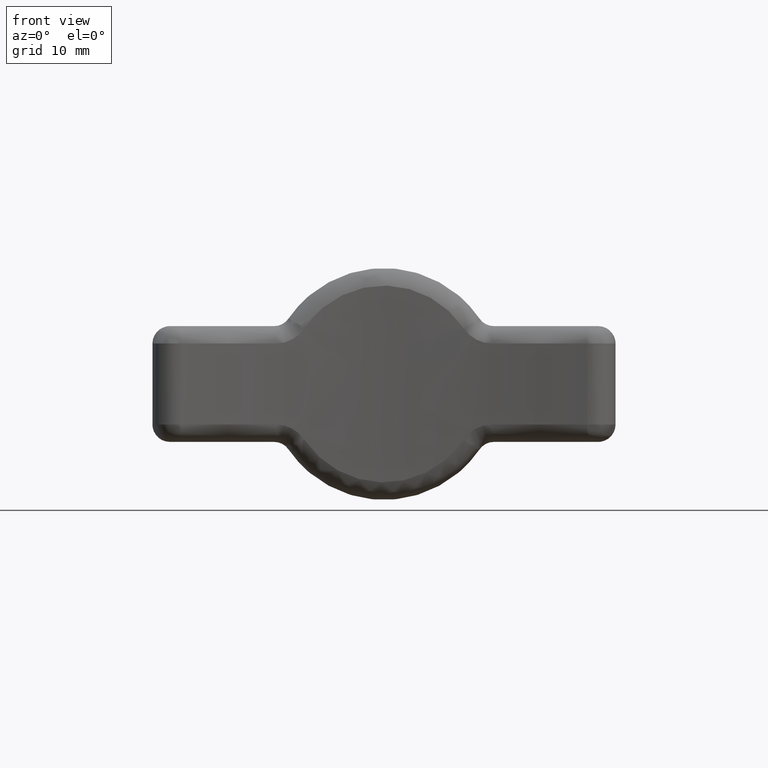
[diagram: clean part render]
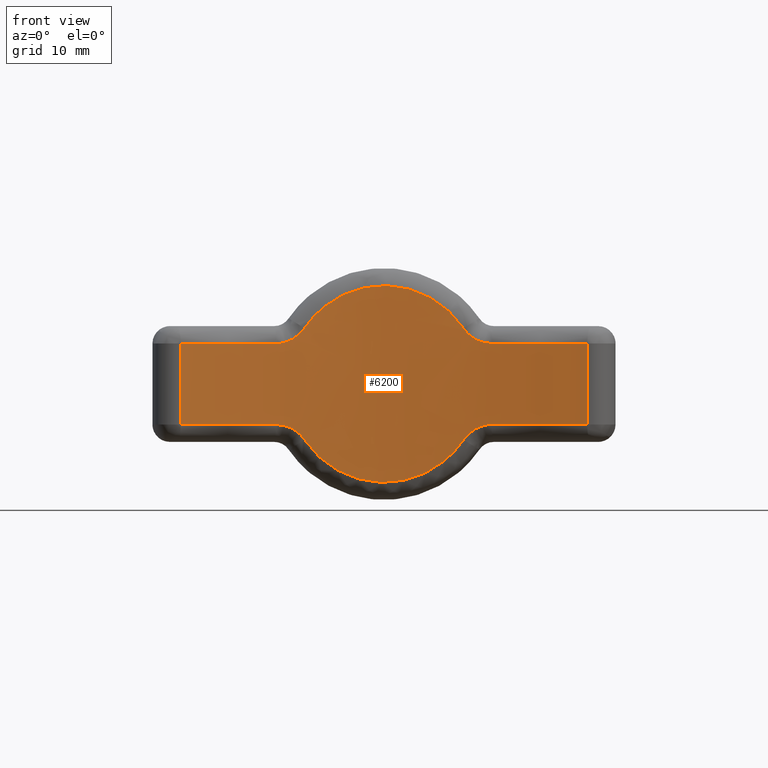
[diagram: same view with one face highlighted and labeled with its STEP entity id]
A machine part, front view. The second image highlights one B-rep face of the part: STEP entity #6200.
In plain terms, the highlighted face is a freeform B-spline surface patch.
Its self-contained STEP definition (entity closure, byte-faithful):
#4626=CARTESIAN_POINT('',(-6.882951530263200,-29.196645229496550,-4.804348001615129));
#4627=VERTEX_POINT('',#4626);
#4643=CARTESIAN_POINT('',(-9.312228540944341,-29.443834816931499,-3.500000237479300));
#4644=VERTEX_POINT('',#4643);
#4645=CARTESIAN_POINT('',(-9.312228540944341,-29.443834816931499,-3.500000237479300));
#4646=CARTESIAN_POINT('',(-9.071518962916295,-29.415623759280962,-3.500000237479301));
#4647=CARTESIAN_POINT('',(-8.835776354449948,-29.389102647513941,-3.529622997993391));
#4648=CARTESIAN_POINT('',(-8.547105047202308,-29.357871837119209,-3.602398044453264));
#4649=CARTESIAN_POINT('',(-8.489675431126289,-29.351722235271229,-3.618765421111290));
#4650=CARTESIAN_POINT('',(-8.375437801589307,-29.339613338252612,-3.655193870482224));
#4651=CARTESIAN_POINT('',(-8.318447065610274,-29.333635309412241,-3.675333693061042));
#4652=CARTESIAN_POINT('',(-8.150526878783099,-29.316199113888882,-3.740604193385678));
#4653=CARTESIAN_POINT('',(-8.042220852334076,-29.305191395184181,-3.790646138706372));
#4654=CARTESIAN_POINT('',(-7.832656029160785,-29.284295692447309,-3.903353612295013));
#4655=CARTESIAN_POINT('',(-7.731397828613546,-29.274407985558771,-3.966020240410201));
#4656=CARTESIAN_POINT('',(-7.584857042386448,-29.260360776220601,-4.069585900042158));
#4657=CARTESIAN_POINT('',(-7.536903577232531,-29.255809371701329,-4.105706313914243));
#4658=CARTESIAN_POINT('',(-7.442823833237929,-29.246962458013289,-4.181214124395618));
#4659=CARTESIAN_POINT('',(-7.396895281725071,-29.242685722533331,-4.220455759793914));
#4660=CARTESIAN_POINT('',(-7.174580743646014,-29.222166975298350,-4.422399176061187));
#4661=CARTESIAN_POINT('',(-7.018020687846637,-29.208309411101261,-4.603516568508907));
#4662=CARTESIAN_POINT('',(-6.882951530263200,-29.196645229496550,-4.804348001615129));
#4663=B_SPLINE_CURVE_WITH_KNOTS('',3,(#4645,#4646,#4647,#4648,#4649,#4650,#4651,#4652,#4653,#4654,#4655,#4656,#4657,#4658,#4659,#4660,#4661,#4662),.UNSPECIFIED.,.F.,.U.,(4,2,2,2,2,2,2,2,4),(0.0,0.250000000000005,0.312500000000005,0.375000000000005,0.500000000000004,0.625000000000002,0.687500000000002,0.750000000000002,1.0),.UNSPECIFIED.);
#4664=EDGE_CURVE('',#4644,#4627,#4663,.T.);
#4734=CARTESIAN_POINT('',(-17.560976556879549,-30.851221002978502,-3.500000237479315));
#4735=VERTEX_POINT('',#4734);
#4736=CARTESIAN_POINT('',(-17.560976556879599,-30.851221002978420,-3.500000237479315));
#4737=CARTESIAN_POINT('',(-13.473455910270824,-29.931528851272681,-3.500000237479315));
#4738=CARTESIAN_POINT('',(-9.312228540944394,-29.443834816931400,-3.500000237479315));
#4746=(BOUNDED_CURVE()B_SPLINE_CURVE(2,(#4736,#4737,#4738),.UNSPECIFIED.,.F.,.U.)CURVE()GEOMETRIC_REPRESENTATION_ITEM()QUASI_UNIFORM_CURVE()RATIONAL_B_SPLINE_CURVE((1.0,0.998631435135119,1.0))REPRESENTATION_ITEM(''));
#4747=EDGE_CURVE('',#4735,#4644,#4746,.T.);
#4846=CARTESIAN_POINT('',(-17.560976556879549,-30.851221002978502,3.500000237479540));
#4847=VERTEX_POINT('',#4846);
#4848=CARTESIAN_POINT('',(-17.560976556879549,-30.851221002978502,3.500000237479540));
#4849=CARTESIAN_POINT('',(-17.560976556879549,-30.851221002978502,-3.500000237479315));
#4850=QUASI_UNIFORM_CURVE('',1,(#4848,#4849),.UNSPECIFIED.,.F.,.U.);
#4851=EDGE_CURVE('',#4847,#4735,#4850,.T.);
#4975=CARTESIAN_POINT('',(-9.312228540944199,-29.443834816931449,3.500000237479540));
#4976=VERTEX_POINT('',#4975);
#4992=CARTESIAN_POINT('',(-9.312228540944153,-29.443834816931371,3.500000237479540));
#4993=CARTESIAN_POINT('',(-13.473455910270628,-29.931528851272638,3.500000237479540));
#4994=CARTESIAN_POINT('',(-17.560976556879559,-30.851221002978420,3.500000237479540));
#5002=(BOUNDED_CURVE()B_SPLINE_CURVE(2,(#4992,#4993,#4994),.UNSPECIFIED.,.F.,.U.)CURVE()GEOMETRIC_REPRESENTATION_ITEM()QUASI_UNIFORM_CURVE()RATIONAL_B_SPLINE_CURVE((1.0,0.998631435135119,1.0))REPRESENTATION_ITEM(''));
#5003=EDGE_CURVE('',#4976,#4847,#5002,.T.);
#5086=CARTESIAN_POINT('',(-6.882951530263100,-29.196645229496550,4.804348001615280));
#5087=VERTEX_POINT('',#5086);
#5105=CARTESIAN_POINT('',(-6.882951530263100,-29.196645229496550,4.804348001615280));
#5106=CARTESIAN_POINT('',(-7.018011532994957,-29.208308620514760,4.603530180661500));
#5107=CARTESIAN_POINT('',(-7.174189859148317,-29.222134234853339,4.422973721272654));
#5108=CARTESIAN_POINT('',(-7.395136969048744,-29.242522620555111,4.221999232380635));
#5109=CARTESIAN_POINT('',(-7.440630258190539,-29.246757647590421,4.183057348700004));
#5110=CARTESIAN_POINT('',(-7.534279729378718,-29.255561242850479,4.107733667484102));
#5111=CARTESIAN_POINT('',(-7.582602017804489,-29.260145887150308,4.071242392751269));
#5112=CARTESIAN_POINT('',(-7.729884697382384,-29.274260466078371,3.966967827058445));
#5113=CARTESIAN_POINT('',(-7.932936928947520,-29.294086144805689,3.841210631793005));
#5114=CARTESIAN_POINT('',(-8.148974391813097,-29.316041024286928,3.741311702752466));
#5115=CARTESIAN_POINT('',(-8.315951245010847,-29.333374640818128,3.676253302473996));
#5116=CARTESIAN_POINT('',(-8.372437199595181,-29.339297361507239,3.656215853272623));
#5117=CARTESIAN_POINT('',(-8.487104845318299,-29.351447778968950,3.619523085359560));
#5118=CARTESIAN_POINT('',(-8.544989553730177,-29.357644328655439,3.602971898823149));
#5119=CARTESIAN_POINT('',(-8.835149539076932,-29.389029487283761,3.529622020823323));
#5120=CARTESIAN_POINT('',(-9.071528057198714,-29.415624825126869,3.500000237479496));
#5121=CARTESIAN_POINT('',(-9.312228540944190,-29.443834816931449,3.500000237479495));
#5122=B_SPLINE_CURVE_WITH_KNOTS('',3,(#5105,#5106,#5107,#5108,#5109,#5110,#5111,#5112,#5113,#5114,#5115,#5116,#5117,#5118,#5119,#5120,#5121),.UNSPECIFIED.,.F.,.U.,(4,2,2,2,1,2,2,2,4),(0.0,0.249999999999999,0.312499999999999,0.374999999999999,0.500000000000001,0.625000000000003,0.687500000000003,0.750000000000003,1.0),.UNSPECIFIED.);
#5123=EDGE_CURVE('',#5087,#4976,#5122,.T.);
#5297=CARTESIAN_POINT('',(6.882951530262910,-29.196645229496500,4.804348001615580));
#5298=VERTEX_POINT('',#5297);
#5299=CARTESIAN_POINT('',(6.882951530262910,-29.196645229496500,4.804348001615580));
#5300=CARTESIAN_POINT('',(6.692180091669834,-29.180170760087250,5.088001961511731));
#5301=CARTESIAN_POINT('',(6.485864922878939,-29.163040290591720,5.357991514905151));
#5302=CARTESIAN_POINT('',(6.042687825544173,-29.128231115384221,5.871167387781828));
#5303=CARTESIAN_POINT('',(5.805826856503565,-29.110550525692648,6.114354420237786));
#5304=CARTESIAN_POINT('',(5.490139297057403,-29.088583783592480,6.401163205751567));
#5305=CARTESIAN_POINT('',(5.425951704936668,-29.084192990067820,6.457715164217164));
#5306=CARTESIAN_POINT('',(5.296347234313942,-29.075488060154321,6.568435410319348));
#5307=CARTESIAN_POINT('',(5.099859553891168,-29.062528736148550,6.731163761486338));
#5308=CARTESIAN_POINT('',(4.897201087164555,-29.049913816723510,6.883956886210044));
#5309=CARTESIAN_POINT('',(4.483760355254020,-29.025273616038881,7.176475245610575));
#5310=CARTESIAN_POINT('',(4.197330948371993,-29.009632608000320,7.354111202534035));
#5311=CARTESIAN_POINT('',(3.751356378670708,-28.987865386386481,7.594340035817850));
#5312=CARTESIAN_POINT('',(3.599969130342005,-28.980892041008179,7.670033651340565));
#5313=CARTESIAN_POINT('',(3.368709639679166,-28.970921875439760,7.776868492425852));
#5314=CARTESIAN_POINT('',(3.290926207179317,-28.967680150660559,7.811361704737352));
#5315=CARTESIAN_POINT('',(3.133944984268276,-28.961371411760389,7.878079226726049));
#5316=CARTESIAN_POINT('',(3.054620583475751,-28.958299941218801,7.910349703773831));
#5317=CARTESIAN_POINT('',(2.656956720414892,-28.943501143676158,8.064968045770637));
#5318=CARTESIAN_POINT('',(2.334247509366044,-28.933393431576370,8.167799561713736));
#5319=CARTESIAN_POINT('',(1.679940622701304,-28.916972570186122,8.332999349436914));
#5320=CARTESIAN_POINT('',(1.348342395000225,-28.910658586274010,8.395365002253284));
#5321=CARTESIAN_POINT('',(0.844180713750553,-28.904278952108200,8.458140062756149));
#5322=CARTESIAN_POINT('',(0.674996409423580,-28.902667682884712,8.473922306691357));
#5323=CARTESIAN_POINT('',(0.419483160540171,-28.901055827824091,8.489695496440836));
#5324=CARTESIAN_POINT('',(0.333875941827207,-28.900652538542769,8.493637437240347));
#5325=CARTESIAN_POINT('',(0.163148621198959,-28.900122188059498,8.498820183227686));
#5326=CARTESIAN_POINT('',(0.077959870261034,-28.899994185099239,8.500070208378265));
#5327=CARTESIAN_POINT('',(-0.347121110482648,-28.900031678971722,8.499703967534243));
#5328=CARTESIAN_POINT('',(-0.684434657932422,-28.902229237701150,8.478313235756813));
#5329=CARTESIAN_POINT('',(-1.353700434779167,-28.910755266977450,8.394409430222243));
#5330=CARTESIAN_POINT('',(-1.685652523752958,-28.917084246923761,8.331895319570942));
#5331=CARTESIAN_POINT('',(-2.097180637665922,-28.927452256763260,8.227564762843713));
#5332=CARTESIAN_POINT('',(-2.179315069861512,-28.929648684499391,8.205384677696536));
#5333=CARTESIAN_POINT('',(-2.343237590918861,-28.934283962820849,8.158365540201528));
#5334=CARTESIAN_POINT('',(-2.425172539076857,-28.936727574327140,8.133477620882770));
#5335=CARTESIAN_POINT('',(-2.669108112579998,-28.944374086787882,8.055207780780904));
#5336=CARTESIAN_POINT('',(-2.829274222709096,-28.949891082222859,7.998240226625372));
#5337=CARTESIAN_POINT('',(-3.302599227188776,-28.967576477187539,7.813355119874438));
#5338=CARTESIAN_POINT('',(-3.608610455631397,-28.980878785499229,7.671505461727405));
#5339=CARTESIAN_POINT('',(-4.201952421350153,-29.009877949353079,7.351343041663596));
#5340=CARTESIAN_POINT('',(-4.489283451227253,-29.025576381526140,7.173030996760441));
#5341=CARTESIAN_POINT('',(-4.836499328185675,-29.046303180926571,6.926780736930613));
#5342=CARTESIAN_POINT('',(-4.905443337930893,-29.050509944209239,6.876281973392302));
#5343=CARTESIAN_POINT('',(-5.041628396405044,-29.058992868878480,6.773281028961065));
#5344=CARTESIAN_POINT('',(-5.243019070603186,-29.071799806496319,6.616040312790791));
#5345=CARTESIAN_POINT('',(-5.435892830051249,-29.084797672007799,6.450714465071910));
#5346=CARTESIAN_POINT('',(-5.810538871980882,-29.110902339299230,6.109514252459461));
#5347=CARTESIAN_POINT('',(-6.045540410418052,-29.128450526444819,5.868020282902962));
#5348=CARTESIAN_POINT('',(-6.486365348359632,-29.163084275903032,5.357254818174227));
#5349=CARTESIAN_POINT('',(-6.692191059900417,-29.180171707271938,5.087985653084953));
#5350=CARTESIAN_POINT('',(-6.882951530263101,-29.196645229496550,4.804348001615278));
#5351=B_SPLINE_CURVE_WITH_KNOTS('',3,(#5299,#5300,#5301,#5302,#5303,#5304,#5305,#5306,#5307,#5308,#5309,#5310,#5311,#5312,#5313,#5314,#5315,#5316,#5317,#5318,#5319,#5320,#5321,#5322,#5323,#5324,#5325,#5326,#5327,#5328,#5329,#5330,#5331,#5332,#5333,#5334,#5335,#5336,#5337,#5338,#5339,#5340,#5341,#5342,#5343,#5344,#5345,#5346,#5347,#5348,#5349,#5350),.UNSPECIFIED.,.F.,.U.,(4,2,2,2,1,2,2,2,2,2,2,2,2,2,2,2,2,2,2,2,2,2,2,1,2,2,4),(0.0,0.062500000000000,0.125000000000000,0.140625000000000,0.156250000000000,0.187500000000000,0.250000000000000,0.281250000000000,0.296875000000000,0.312500000000000,0.374999999999999,0.437499999999999,0.468749999999999,0.484374999999999,0.499999999999999,0.562499999999999,0.624999999999999,0.640624999999999,0.656249999999999,0.687500000000000,0.750000000000000,0.812500000000001,0.828125000000001,0.843750000000001,0.875000000000001,0.937500000000000,1.0),.UNSPECIFIED.);
#5352=EDGE_CURVE('',#5298,#5087,#5351,.T.);
#5452=CARTESIAN_POINT('',(9.312228540943931,-29.443834816931400,3.500000237479895));
#5453=VERTEX_POINT('',#5452);
#5454=CARTESIAN_POINT('',(9.312228540943931,-29.443834816931400,3.500000237479895));
#5455=CARTESIAN_POINT('',(9.071518962915905,-29.415623759280869,3.500000237479897));
#5456=CARTESIAN_POINT('',(8.835776354449568,-29.389102647513869,3.529622997993991));
#5457=CARTESIAN_POINT('',(8.547105047201946,-29.357871837119159,3.602398044453854));
#5458=CARTESIAN_POINT('',(8.489675431125933,-29.351722235271179,3.618765421111878));
#5459=CARTESIAN_POINT('',(8.375437801588960,-29.339613338252558,3.655193870482808));
#5460=CARTESIAN_POINT('',(8.318447065609933,-29.333635309412180,3.675333693061623));
#5461=CARTESIAN_POINT('',(8.150526878782767,-29.316199113888828,3.740604193386252));
#5462=CARTESIAN_POINT('',(8.042220852333751,-29.305191395184139,3.790646138706939));
#5463=CARTESIAN_POINT('',(7.832656029160466,-29.284295692447252,3.903353612295565));
#5464=CARTESIAN_POINT('',(7.731397828613233,-29.274407985558710,3.966020240410745));
#5465=CARTESIAN_POINT('',(7.584857042386141,-29.260360776220541,4.069585900042688));
#5466=CARTESIAN_POINT('',(7.536903577232225,-29.255809371701279,4.105706313914771));
#5467=CARTESIAN_POINT('',(7.442823833237632,-29.246962458013261,4.181214124396138));
#5468=CARTESIAN_POINT('',(7.396895281724775,-29.242685722533299,4.220455759794429));
#5469=CARTESIAN_POINT('',(7.174580743645721,-29.222166975298290,4.422399176061677));
#5470=CARTESIAN_POINT('',(7.018020687846347,-29.208309411101201,4.603516568509367));
#5471=CARTESIAN_POINT('',(6.882951530262910,-29.196645229496500,4.804348001615570));
#5472=B_SPLINE_CURVE_WITH_KNOTS('',3,(#5454,#5455,#5456,#5457,#5458,#5459,#5460,#5461,#5462,#5463,#5464,#5465,#5466,#5467,#5468,#5469,#5470,#5471),.UNSPECIFIED.,.F.,.U.,(4,2,2,2,2,2,2,2,4),(0.0,0.250000000000005,0.312500000000006,0.375000000000006,0.500000000000005,0.625000000000004,0.687500000000003,0.750000000000003,1.0),.UNSPECIFIED.);
#5473=EDGE_CURVE('',#5453,#5298,#5472,.T.);
#5547=CARTESIAN_POINT('',(17.560976556879549,-30.851221002978448,3.500000237479870));
#5548=VERTEX_POINT('',#5547);
#5549=CARTESIAN_POINT('',(17.560976556879581,-30.851221002978381,3.500000237479870));
#5550=CARTESIAN_POINT('',(13.473455910270589,-29.931528851272589,3.500000237479870));
#5551=CARTESIAN_POINT('',(9.312228540943957,-29.443834816931329,3.500000237479870));
#5559=(BOUNDED_CURVE()B_SPLINE_CURVE(2,(#5549,#5550,#5551),.UNSPECIFIED.,.F.,.U.)CURVE()GEOMETRIC_REPRESENTATION_ITEM()QUASI_UNIFORM_CURVE()RATIONAL_B_SPLINE_CURVE((1.0,0.998631435135119,1.0))REPRESENTATION_ITEM(''));
#5560=EDGE_CURVE('',#5548,#5453,#5559,.T.);
#5659=CARTESIAN_POINT('',(17.560976556879549,-30.851221002978448,-3.500000237479870));
#5660=VERTEX_POINT('',#5659);
#5661=CARTESIAN_POINT('',(17.560976556879549,-30.851221002978448,-3.500000237479870));
#5662=CARTESIAN_POINT('',(17.560976556879549,-30.851221002978448,3.500000237479870));
#5663=QUASI_UNIFORM_CURVE('',1,(#5661,#5662),.UNSPECIFIED.,.F.,.U.);
#5664=EDGE_CURVE('',#5660,#5548,#5663,.T.);
#5788=CARTESIAN_POINT('',(9.312228540943931,-29.443834816931400,-3.500000237479870));
#5789=VERTEX_POINT('',#5788);
#5807=CARTESIAN_POINT('',(9.312228540943927,-29.443834816931322,-3.500000237479870));
#5808=CARTESIAN_POINT('',(13.473455910270410,-29.931528851272564,-3.500000237479870));
#5809=CARTESIAN_POINT('',(17.560976556879559,-30.851221002978381,-3.500000237479870));
#5817=(BOUNDED_CURVE()B_SPLINE_CURVE(2,(#5807,#5808,#5809),.UNSPECIFIED.,.F.,.U.)CURVE()GEOMETRIC_REPRESENTATION_ITEM()QUASI_UNIFORM_CURVE()RATIONAL_B_SPLINE_CURVE((1.0,0.998631435135119,1.0))REPRESENTATION_ITEM(''));
#5818=EDGE_CURVE('',#5789,#5660,#5817,.T.);
#5901=CARTESIAN_POINT('',(6.882951530262910,-29.196645229496500,-4.804348001615580));
#5902=VERTEX_POINT('',#5901);
#5920=CARTESIAN_POINT('',(6.882951530262910,-29.196645229496500,-4.804348001615580));
#5921=CARTESIAN_POINT('',(7.018011532994769,-29.208308620514710,-4.603530180661813));
#5922=CARTESIAN_POINT('',(7.174189859148125,-29.222134234853300,-4.422973721272980));
#5923=CARTESIAN_POINT('',(7.395136969048549,-29.242522620555079,-4.221999232380978));
#5924=CARTESIAN_POINT('',(7.440630258190346,-29.246757647590400,-4.183057348700349));
#5925=CARTESIAN_POINT('',(7.534279729378519,-29.255561242850440,-4.107733667484454));
#5926=CARTESIAN_POINT('',(7.582602017804288,-29.260145887150280,-4.071242392751622));
#5927=CARTESIAN_POINT('',(7.729884697382183,-29.274260466078349,-3.966967827058809));
#5928=CARTESIAN_POINT('',(7.932937167979225,-29.294085978484350,-3.841211067267693));
#5929=CARTESIAN_POINT('',(8.148974391812891,-29.316041024286871,-3.741311702752847));
#5930=CARTESIAN_POINT('',(8.315951245010634,-29.333374640818072,-3.676253302474380));
#5931=CARTESIAN_POINT('',(8.372437199594957,-29.339297361507189,-3.656215853273009));
#5932=CARTESIAN_POINT('',(8.487104845318072,-29.351447778968900,-3.619523085359951));
#5933=CARTESIAN_POINT('',(8.544989553729948,-29.357644328655379,-3.602971898823540));
#5934=CARTESIAN_POINT('',(8.835149539076690,-29.389029487283700,-3.529622020823720));
#5935=CARTESIAN_POINT('',(9.071528057198460,-29.415624825126820,-3.500000237479895));
#5936=CARTESIAN_POINT('',(9.312228540943931,-29.443834816931400,-3.500000237479895));
#5937=B_SPLINE_CURVE_WITH_KNOTS('',3,(#5920,#5921,#5922,#5923,#5924,#5925,#5926,#5927,#5928,#5929,#5930,#5931,#5932,#5933,#5934,#5935,#5936),.UNSPECIFIED.,.F.,.U.,(4,2,2,2,1,2,2,2,4),(0.0,0.249999999999999,0.312499999999998,0.374999999999998,0.499999999999998,0.624999999999998,0.687499999999999,0.749999999999999,1.0),.UNSPECIFIED.);
#5938=EDGE_CURVE('',#5902,#5789,#5937,.T.);
#6112=CARTESIAN_POINT('',(-6.882951530263200,-29.196645229496550,-4.804348001615129));
#6113=CARTESIAN_POINT('',(-6.692180091670141,-29.180170760087311,-5.088001961511294));
#6114=CARTESIAN_POINT('',(-6.485864922879266,-29.163040290591759,-5.357991514904738));
#6115=CARTESIAN_POINT('',(-6.042687825544527,-29.128231115384271,-5.871167387781445));
#6116=CARTESIAN_POINT('',(-5.805826856503931,-29.110550525692691,-6.114354420237420));
#6117=CARTESIAN_POINT('',(-5.490139297057785,-29.088583783592529,-6.401163205751224));
#6118=CARTESIAN_POINT('',(-5.425951704937056,-29.084192990067859,-6.457715164216825));
#6119=CARTESIAN_POINT('',(-5.296347234314333,-29.075488060154338,-6.568435410319019));
#6120=CARTESIAN_POINT('',(-5.099859553891565,-29.062528736148579,-6.731163761486022));
#6121=CARTESIAN_POINT('',(-4.897201087164959,-29.049913816723549,-6.883956886209742));
#6122=CARTESIAN_POINT('',(-4.483760355254437,-29.025273616038909,-7.176475245610298));
#6123=CARTESIAN_POINT('',(-4.197330948372419,-29.009632608000331,-7.354111202533780));
#6124=CARTESIAN_POINT('',(-3.751356378671145,-28.987865386386499,-7.594340035817626));
#6125=CARTESIAN_POINT('',(-3.599969130342445,-28.980892041008222,-7.670033651340353));
#6126=CARTESIAN_POINT('',(-3.368709639679609,-28.970921875439789,-7.776868492425650));
#6127=CARTESIAN_POINT('',(-3.290926207179759,-28.967680150660581,-7.811361704737153));
#6128=CARTESIAN_POINT('',(-3.133944984268721,-28.961371411760389,-7.878079226725855));
#6129=CARTESIAN_POINT('',(-3.054620583476198,-28.958299941218840,-7.910349703773649));
#6130=CARTESIAN_POINT('',(-2.656956720415345,-28.943501143676190,-8.064968045770485));
#6131=CARTESIAN_POINT('',(-2.334247509366497,-28.933393431576398,-8.167799561713604));
#6132=CARTESIAN_POINT('',(-1.679940622701760,-28.916972570186150,-8.332999349436816));
#6133=CARTESIAN_POINT('',(-1.348342395000681,-28.910658586274039,-8.395365002253209));
#6134=CARTESIAN_POINT('',(-0.844180713751007,-28.904278952108228,-8.458140062756099));
#6135=CARTESIAN_POINT('',(-0.674996409424033,-28.902667682884719,-8.473922306691318));
#6136=CARTESIAN_POINT('',(-0.419483160540622,-28.901055827824091,-8.489695496440815));
#6137=CARTESIAN_POINT('',(-0.333875941827662,-28.900652538542769,-8.493637437240329));
#6138=CARTESIAN_POINT('',(-0.163148621199411,-28.900122188059509,-8.498820183227675));
#6139=CARTESIAN_POINT('',(-0.077959870261484,-28.899994185099249,-8.500070208378265));
#6140=CARTESIAN_POINT('',(0.347121110482204,-28.900031678971700,-8.499703967534259));
#6141=CARTESIAN_POINT('',(0.684434657931984,-28.902229237701160,-8.478313235756849));
#6142=CARTESIAN_POINT('',(1.353700434778742,-28.910755266977471,-8.394409430222316));
#6143=CARTESIAN_POINT('',(1.685652523752538,-28.917084246923739,-8.331895319571030));
#6144=CARTESIAN_POINT('',(2.097180637665511,-28.927452256763232,-8.227564762843819));
#6145=CARTESIAN_POINT('',(2.179315069861104,-28.929648684499369,-8.205384677696651));
#6146=CARTESIAN_POINT('',(2.343237590918458,-28.934283962820821,-8.158365540201654));
#6147=CARTESIAN_POINT('',(2.425172539076455,-28.936727574327119,-8.133477620882898));
#6148=CARTESIAN_POINT('',(2.669108112579605,-28.944374086787850,-8.055207780781039));
#6149=CARTESIAN_POINT('',(2.829274222708710,-28.949891082222809,-7.998240226625518));
#6150=CARTESIAN_POINT('',(3.302599227188406,-28.967576477187510,-7.813355119874602));
#6151=CARTESIAN_POINT('',(3.608610455631036,-28.980878785499218,-7.671505461727587));
#6152=CARTESIAN_POINT('',(4.201952421349815,-29.009877949353051,-7.351343041663800));
#6153=CARTESIAN_POINT('',(4.489283451226927,-29.025576381526118,-7.173030996760661));
#6154=CARTESIAN_POINT('',(4.836499328185365,-29.046303180926550,-6.926780736930843));
#6155=CARTESIAN_POINT('',(4.905443337930583,-29.050509944209200,-6.876281973392534));
#6156=CARTESIAN_POINT('',(5.041628396404740,-29.058992868878459,-6.773281028961302));
#6157=CARTESIAN_POINT('',(5.243019070602896,-29.071799806496291,-6.616040312791036));
#6158=CARTESIAN_POINT('',(5.435892830050968,-29.084797672007781,-6.450714465072164));
#6159=CARTESIAN_POINT('',(5.810538871980618,-29.110902339299191,-6.109514252459722));
#6160=CARTESIAN_POINT('',(6.045540410417800,-29.128450526444780,-5.868020282903234));
#6161=CARTESIAN_POINT('',(6.486365348359411,-29.163084275903000,-5.357254818174515));
#6162=CARTESIAN_POINT('',(6.692191059900216,-29.180171707271889,-5.087985653085251));
#6163=CARTESIAN_POINT('',(6.882951530262910,-29.196645229496500,-4.804348001615580));
#6164=B_SPLINE_CURVE_WITH_KNOTS('',3,(#6112,#6113,#6114,#6115,#6116,#6117,#6118,#6119,#6120,#6121,#6122,#6123,#6124,#6125,#6126,#6127,#6128,#6129,#6130,#6131,#6132,#6133,#6134,#6135,#6136,#6137,#6138,#6139,#6140,#6141,#6142,#6143,#6144,#6145,#6146,#6147,#6148,#6149,#6150,#6151,#6152,#6153,#6154,#6155,#6156,#6157,#6158,#6159,#6160,#6161,#6162,#6163),.UNSPECIFIED.,.F.,.U.,(4,2,2,2,1,2,2,2,2,2,2,2,2,2,2,2,2,2,2,2,2,2,2,1,2,2,4),(0.0,0.062500000000000,0.124999999999999,0.140624999999999,0.156249999999999,0.187499999999999,0.249999999999999,0.281249999999999,0.296874999999998,0.312499999999998,0.374999999999998,0.437499999999998,0.468749999999998,0.484374999999998,0.499999999999998,0.562499999999998,0.624999999999997,0.640624999999997,0.656249999999997,0.687499999999998,0.749999999999998,0.812499999999998,0.828124999999998,0.843749999999999,0.874999999999999,0.937499999999999,1.0),.UNSPECIFIED.);
#6165=EDGE_CURVE('',#4627,#5902,#6164,.T.);
#6172=CARTESIAN_POINT('',(19.261952491651034,-31.253512694209697,8.925000000785460));
#6173=CARTESIAN_POINT('',(19.261952491651034,-31.253512694209697,-8.935624312569027));
#6174=CARTESIAN_POINT('',(-0.004332840495463,-26.474078866438354,8.925000000785463));
#6175=CARTESIAN_POINT('',(-0.004332840495463,-26.474078866438354,-8.935624312569027));
#6176=CARTESIAN_POINT('',(-19.270115590179461,-31.255538189250448,8.925000000785463));
#6177=CARTESIAN_POINT('',(-19.270115590179461,-31.255538189250448,-8.935624312569027));
#6185=(BOUNDED_SURFACE()B_SPLINE_SURFACE(1,2,((#6172,#6174,#6176),(#6173,#6175,#6177)),.UNSPECIFIED.,.F.,.F.,.U.)B_SPLINE_SURFACE_WITH_KNOTS((2,2),(3,3),(0.0,17.860624313354489),(1.262120936262608,40.373877551209929),.UNSPECIFIED.)GEOMETRIC_REPRESENTATION_ITEM()RATIONAL_B_SPLINE_SURFACE(((0.997886721455546,0.966088079852497,0.992887086673151),(0.997886721455546,0.966088079852497,0.992887086673151)))REPRESENTATION_ITEM('')SURFACE());
#6186=ORIENTED_EDGE('',*,*,#4851,.T.);
#6187=ORIENTED_EDGE('',*,*,#4747,.T.);
#6188=ORIENTED_EDGE('',*,*,#4664,.T.);
#6189=ORIENTED_EDGE('',*,*,#6165,.T.);
#6190=ORIENTED_EDGE('',*,*,#5938,.T.);
#6191=ORIENTED_EDGE('',*,*,#5818,.T.);
#6192=ORIENTED_EDGE('',*,*,#5664,.T.);
#6193=ORIENTED_EDGE('',*,*,#5560,.T.);
#6194=ORIENTED_EDGE('',*,*,#5473,.T.);
#6195=ORIENTED_EDGE('',*,*,#5352,.T.);
#6196=ORIENTED_EDGE('',*,*,#5123,.T.);
#6197=ORIENTED_EDGE('',*,*,#5003,.T.);
#6198=EDGE_LOOP('',(#6186,#6187,#6188,#6189,#6190,#6191,#6192,#6193,#6194,#6195,#6196,#6197));
#6199=FACE_OUTER_BOUND('',#6198,.T.);
#6200=ADVANCED_FACE('',(#6199),#6185,.F.);